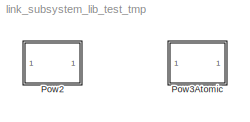
MODEL link_subsystem_lib_test_tmp
KIND library
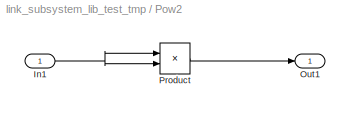
BLOCK [SubSystem] Pow2
  Ports = [1, 1]
  RequestExecContextInheritance = off
  SID = 1
  Variant = off
BLOCK [Inport] Pow2/In1
  IconDisplay = Port number
  PortDimensions = 1
  SID = 2
  SampleTime = 0
  SamplingMode = Sample based
  SignalType = real
BLOCK [Outport] Pow2/Out1
  IconDisplay = Port number
  PortDimensions = 1
  SID = 4
  SampleTime = 0
  SamplingMode = Sample based
  SignalType = real
BLOCK [Product] Pow2/Product
  InputSameDT = off
  OutDataTypeStr = Inherit: Inherit via internal rule
  Ports = [2, 1]
  RndMeth = Floor
  SID = 3
  SaturateOnIntegerOverflow = off
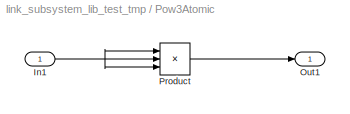
BLOCK [SubSystem] Pow3Atomic
  Ports = [1, 1]
  RequestExecContextInheritance = off
  SID = 5
  TreatAsAtomicUnit = on
  Variant = off
BLOCK [Inport] Pow3Atomic/In1
  IconDisplay = Port number
  PortDimensions = 1
  SID = 6
  SampleTime = 0
  SamplingMode = Sample based
  SignalType = real
BLOCK [Outport] Pow3Atomic/Out1
  IconDisplay = Port number
  PortDimensions = 1
  SID = 8
  SampleTime = 0
  SamplingMode = Sample based
  SignalType = real
BLOCK [Product] Pow3Atomic/Product
  InputSameDT = off
  Inputs = 3
  OutDataTypeStr = Inherit: Inherit via internal rule
  Ports = [3, 1]
  RndMeth = Floor
  SID = 7
  SaturateOnIntegerOverflow = off
NET Pow2/In1:1 -> Pow2/Product:1, Pow2/Product:2
LINE Pow2/Product:1 -> Pow2/Out1:1
NET Pow3Atomic/In1:1 -> Pow3Atomic/Product:1, Pow3Atomic/Product:2, Pow3Atomic/Product:3
LINE Pow3Atomic/Product:1 -> Pow3Atomic/Out1:1
note: NET lines group one-source signal fan-out (src -> all destinations, sorted); 1:1 wires keep LINE
